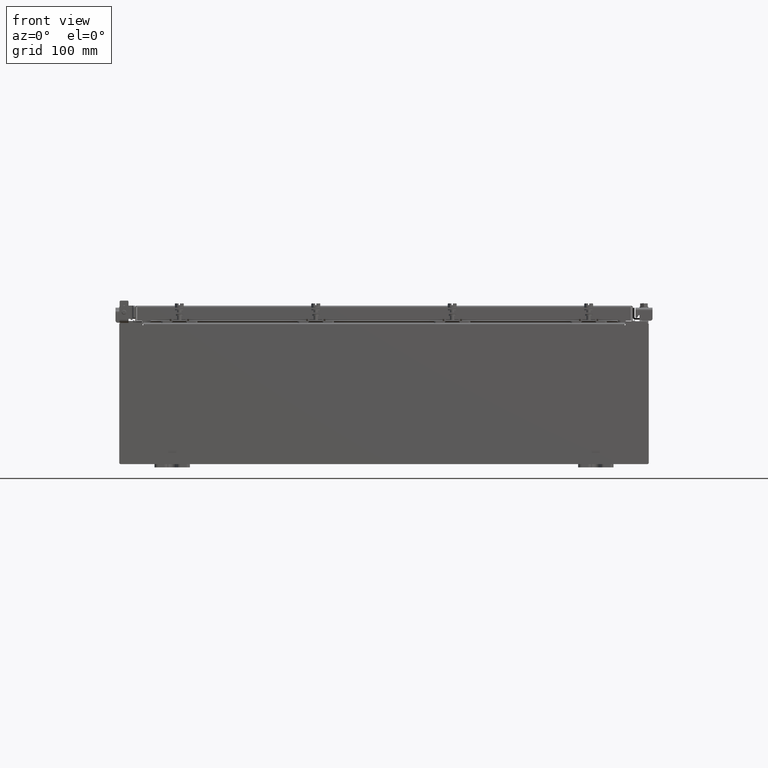
[diagram: clean part render]
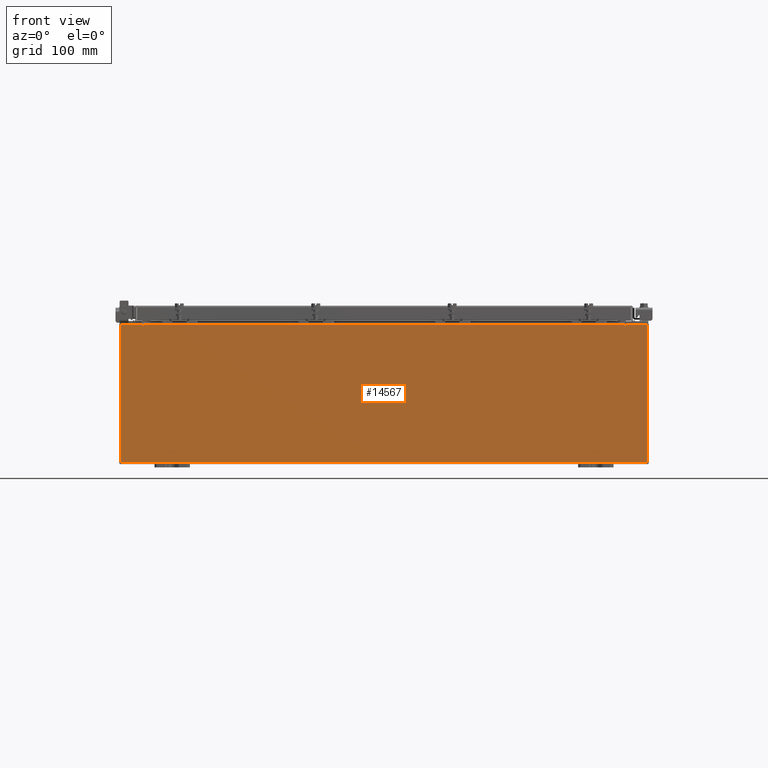
[diagram: same view with one face highlighted and labeled with its STEP entity id]
A machine part, front view. The second image highlights one B-rep face of the part: STEP entity #14567.
In plain terms, the highlighted planar face has unit normal (-0, 1, -0).
Its self-contained STEP definition (entity closure, byte-faithful):
#79 = DIRECTION ( 'NONE',  ( 0.0000000000000000000, -1.000000000000000000, 0.0000000000000000000 ) ) ;
#315 = LINE ( 'NONE', #19869, #17878 ) ;
#540 = EDGE_CURVE ( 'NONE', #15132, #15764, #22041, .T. ) ;
#800 = VERTEX_POINT ( 'NONE', #20711 ) ;
#824 = DIRECTION ( 'NONE',  ( -0.0000000000000000000, 1.000000000000000000, -0.0000000000000000000 ) ) ;
#1101 = CARTESIAN_POINT ( 'NONE',  ( -13.63719999999999800, 1.024442997624098700E-016, 3.912299999999999700 ) ) ;
#1710 = DIRECTION ( 'NONE',  ( 0.0000000000000000000, 0.0000000000000000000, -1.000000000000000000 ) ) ;
#1760 = CARTESIAN_POINT ( 'NONE',  ( 0.0000000000000000000, 0.0000000000000000000, 0.0000000000000000000 ) ) ;
#1768 = VERTEX_POINT ( 'NONE', #5294 ) ;
#2320 = LINE ( 'NONE', #7657, #20441 ) ;
#2475 = EDGE_CURVE ( 'NONE', #1768, #22471, #315, .T. ) ;
#2522 = ORIENTED_EDGE ( 'NONE', *, *, #19107, .T. ) ;
#2572 = VERTEX_POINT ( 'NONE', #14387 ) ;
#2631 = EDGE_CURVE ( 'NONE', #800, #15764, #19780, .T. ) ;
#2875 = VECTOR ( 'NONE', #13496, 39.37007874015748100 ) ;
#2937 = DIRECTION ( 'NONE',  ( 1.000000000000000000, 0.0000000000000000000, 0.0000000000000000000 ) ) ;
#3474 = ORIENTED_EDGE ( 'NONE', *, *, #11548, .T. ) ;
#3676 = ORIENTED_EDGE ( 'NONE', *, *, #18094, .F. ) ;
#4102 = EDGE_CURVE ( 'NONE', #13136, #800, #12121, .T. ) ;
#4136 = CARTESIAN_POINT ( 'NONE',  ( -14.92529999999999800, 0.0000000000000000000, 3.925299999999999600 ) ) ;
#4246 = ORIENTED_EDGE ( 'NONE', *, *, #17316, .T. ) ;
#4597 = AXIS2_PLACEMENT_3D ( 'NONE', #11276, #824, #13047 ) ;
#5294 = CARTESIAN_POINT ( 'NONE',  ( 13.67455000000000400, 0.0000000000000000000, 3.925299999999999600 ) ) ;
#5581 = ORIENTED_EDGE ( 'NONE', *, *, #7039, .F. ) ;
#5726 = AXIS2_PLACEMENT_3D ( 'NONE', #16205, #15591, #16850 ) ;
#6242 = DIRECTION ( 'NONE',  ( 1.000000000000000000, 0.0000000000000000000, 0.0000000000000000000 ) ) ;
#7039 = EDGE_CURVE ( 'NONE', #21755, #13136, #13795, .T. ) ;
#7047 = PLANE ( 'NONE',  #18351 ) ;
#7051 = CARTESIAN_POINT ( 'NONE',  ( 13.63720000000000400, 0.0000000000000000000, 3.912299999999999700 ) ) ;
#7097 = DIRECTION ( 'NONE',  ( 0.0000000000000000000, 0.0000000000000000000, 1.000000000000000000 ) ) ;
#7261 = ORIENTED_EDGE ( 'NONE', *, *, #4102, .F. ) ;
#7657 = CARTESIAN_POINT ( 'NONE',  ( 13.67454999999983300, -0.0000000000000000000, -5.935537951421816200E-013 ) ) ;
#8035 = FACE_OUTER_BOUND ( 'NONE', #19906, .T. ) ;
#8082 = VERTEX_POINT ( 'NONE', #11903 ) ;
#8149 = VERTEX_POINT ( 'NONE', #15541 ) ;
#8439 = LINE ( 'NONE', #17600, #22385 ) ;
#9424 = ORIENTED_EDGE ( 'NONE', *, *, #16608, .T. ) ;
#9849 = CARTESIAN_POINT ( 'NONE',  ( -14.92529999999999800, 0.0000000000000000000, 3.925299999999999600 ) ) ;
#9871 = ORIENTED_EDGE ( 'NONE', *, *, #540, .T. ) ;
#9979 = CARTESIAN_POINT ( 'NONE',  ( 14.92530000000000200, 0.0000000000000000000, 3.925299999999999600 ) ) ;
#10104 = CARTESIAN_POINT ( 'NONE',  ( -13.63719999999999600, -0.0000000000000000000, 3.874949999999999700 ) ) ;
#11276 = CARTESIAN_POINT ( 'NONE',  ( 13.65587500000000200, 0.0000000000000000000, 3.874949999999999700 ) ) ;
#11427 = ORIENTED_EDGE ( 'NONE', *, *, #2631, .F. ) ;
#11548 = EDGE_CURVE ( 'NONE', #2572, #16007, #13394, .T. ) ;
#11755 = CARTESIAN_POINT ( 'NONE',  ( -14.92529999999999800, 0.0000000000000000000, 3.925299999999999600 ) ) ;
#11903 = CARTESIAN_POINT ( 'NONE',  ( 13.63720000000000400, 0.0000000000000000000, 3.874949999999999700 ) ) ;
#12025 = VECTOR ( 'NONE', #18659, 39.37007874015748100 ) ;
#12121 = CIRCLE ( 'NONE', #5726, 0.01867499999999949400 ) ;
#12282 = DIRECTION ( 'NONE',  ( 0.0000000000000000000, -0.0000000000000000000, -1.000000000000000000 ) ) ;
#12837 = ORIENTED_EDGE ( 'NONE', *, *, #2475, .T. ) ;
#13047 = DIRECTION ( 'NONE',  ( 0.0000000000000000000, 0.0000000000000000000, -1.000000000000000000 ) ) ;
#13136 = VERTEX_POINT ( 'NONE', #10104 ) ;
#13394 = LINE ( 'NONE', #13640, #22187 ) ;
#13432 = DIRECTION ( 'NONE',  ( 0.0000000000000000000, 0.0000000000000000000, -1.000000000000000000 ) ) ;
#13496 = DIRECTION ( 'NONE',  ( -0.0000000000000000000, -0.0000000000000000000, 1.000000000000000000 ) ) ;
#13640 = CARTESIAN_POINT ( 'NONE',  ( -14.92529999999999800, 0.0000000000000000000, -3.925299999999999600 ) ) ;
#13795 = LINE ( 'NONE', #15730, #17997 ) ;
#14387 = CARTESIAN_POINT ( 'NONE',  ( 14.92530000000000200, 0.0000000000000000000, -3.925299999999999600 ) ) ;
#14567 = ADVANCED_FACE ( 'NONE', ( #8035 ), #7047, .F. ) ;
#15086 = VECTOR ( 'NONE', #17505, 39.37007874015748100 ) ;
#15132 = VERTEX_POINT ( 'NONE', #4136 ) ;
#15250 = CARTESIAN_POINT ( 'NONE',  ( -13.63719999999999600, 1.024442997624098700E-016, 3.912299999999999700 ) ) ;
#15461 = DIRECTION ( 'NONE',  ( -1.000000000000000000, -0.0000000000000000000, -0.0000000000000000000 ) ) ;
#15541 = CARTESIAN_POINT ( 'NONE',  ( 13.67455000000000200, 0.0000000000000000000, 3.874949999999999700 ) ) ;
#15591 = DIRECTION ( 'NONE',  ( -0.0000000000000000000, 1.000000000000000000, -0.0000000000000000000 ) ) ;
#15730 = CARTESIAN_POINT ( 'NONE',  ( -13.63719999999999600, -0.0000000000000000000, 0.0000000000000000000 ) ) ;
#15764 = VERTEX_POINT ( 'NONE', #18157 ) ;
#16007 = VERTEX_POINT ( 'NONE', #22089 ) ;
#16205 = CARTESIAN_POINT ( 'NONE',  ( -13.65587499999999600, 0.0000000000000000000, 3.874949999999999700 ) ) ;
#16608 = EDGE_CURVE ( 'NONE', #21755, #19387, #16737, .T. ) ;
#16737 = LINE ( 'NONE', #1101, #12025 ) ;
#16850 = DIRECTION ( 'NONE',  ( 0.0000000000000000000, 0.0000000000000000000, -1.000000000000000000 ) ) ;
#16883 = VECTOR ( 'NONE', #6242, 39.37007874015748100 ) ;
#17195 = VECTOR ( 'NONE', #13432, 39.37007874015748100 ) ;
#17316 = EDGE_CURVE ( 'NONE', #16007, #15132, #18638, .T. ) ;
#17347 = CARTESIAN_POINT ( 'NONE',  ( -13.67454999999999500, -0.0000000000000000000, 0.0000000000000000000 ) ) ;
#17505 = DIRECTION ( 'NONE',  ( 0.0000000000000000000, 0.0000000000000000000, 1.000000000000000000 ) ) ;
#17600 = CARTESIAN_POINT ( 'NONE',  ( 13.63720000000000400, 0.0000000000000000000, 0.0000000000000000000 ) ) ;
#17878 = VECTOR ( 'NONE', #2937, 39.37007874015748100 ) ;
#17997 = VECTOR ( 'NONE', #1710, 39.37007874015748100 ) ;
#18094 = EDGE_CURVE ( 'NONE', #8082, #19387, #8439, .T. ) ;
#18157 = CARTESIAN_POINT ( 'NONE',  ( -13.67454999999999500, 0.0000000000000000000, 3.925299999999999600 ) ) ;
#18351 = AXIS2_PLACEMENT_3D ( 'NONE', #1760, #79, #12282 ) ;
#18579 = CIRCLE ( 'NONE', #4597, 0.01867499999999949400 ) ;
#18638 = LINE ( 'NONE', #11755, #2875 ) ;
#18659 = DIRECTION ( 'NONE',  ( 1.000000000000000000, 0.0000000000000000000, 0.0000000000000000000 ) ) ;
#19107 = EDGE_CURVE ( 'NONE', #22471, #2572, #21798, .T. ) ;
#19387 = VERTEX_POINT ( 'NONE', #7051 ) ;
#19667 = EDGE_CURVE ( 'NONE', #8149, #8082, #18579, .T. ) ;
#19701 = ORIENTED_EDGE ( 'NONE', *, *, #20978, .F. ) ;
#19780 = LINE ( 'NONE', #17347, #15086 ) ;
#19869 = CARTESIAN_POINT ( 'NONE',  ( -14.92529999999999800, 0.0000000000000000000, 3.925299999999999600 ) ) ;
#19906 = EDGE_LOOP ( 'NONE', ( #11427, #7261, #5581, #9424, #3676, #20995, #19701, #12837, #2522, #3474, #4246, #9871 ) ) ;
#20020 = DIRECTION ( 'NONE',  ( -4.340572780400004900E-014, 0.0000000000000000000, -1.000000000000000000 ) ) ;
#20441 = VECTOR ( 'NONE', #20020, 39.37007874015748100 ) ;
#20477 = CARTESIAN_POINT ( 'NONE',  ( 14.92530000000000200, 0.0000000000000000000, 3.925299999999999600 ) ) ;
#20711 = CARTESIAN_POINT ( 'NONE',  ( -13.67454999999999500, 0.0000000000000000000, 3.874949999999999700 ) ) ;
#20978 = EDGE_CURVE ( 'NONE', #1768, #8149, #2320, .T. ) ;
#20995 = ORIENTED_EDGE ( 'NONE', *, *, #19667, .F. ) ;
#21755 = VERTEX_POINT ( 'NONE', #15250 ) ;
#21798 = LINE ( 'NONE', #20477, #17195 ) ;
#22041 = LINE ( 'NONE', #9849, #16883 ) ;
#22089 = CARTESIAN_POINT ( 'NONE',  ( -14.92529999999999800, 0.0000000000000000000, -3.925299999999999600 ) ) ;
#22187 = VECTOR ( 'NONE', #15461, 39.37007874015748100 ) ;
#22385 = VECTOR ( 'NONE', #7097, 39.37007874015748100 ) ;
#22471 = VERTEX_POINT ( 'NONE', #9979 ) ;